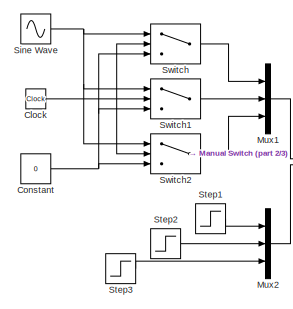
[diagram: root canvas - part 1/3, top left region]
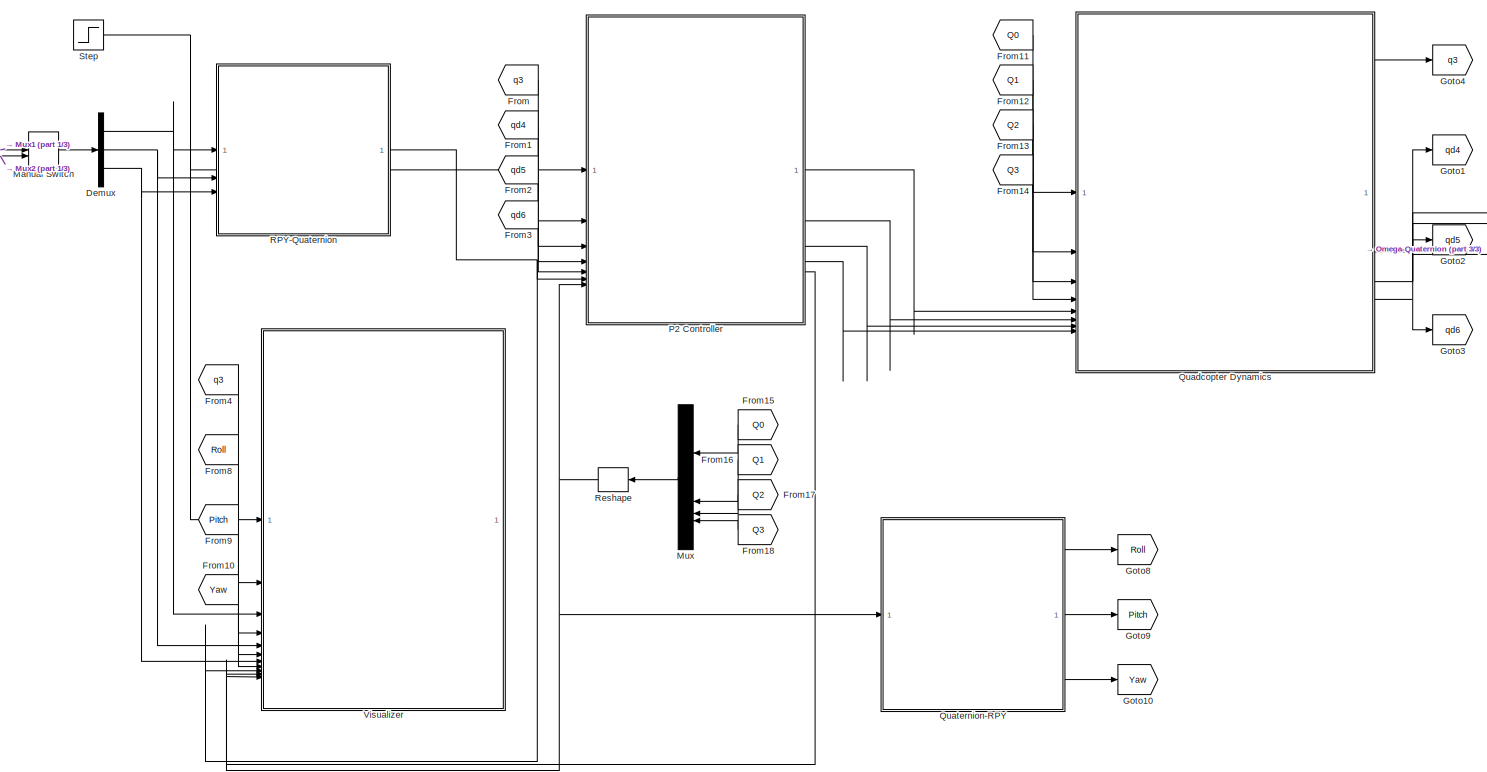
[diagram: root canvas - part 2/3, center side, full height]
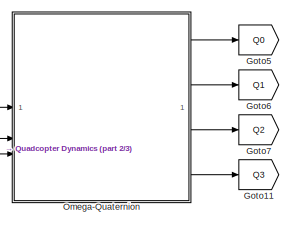
[diagram: root canvas - part 3/3, top right region]
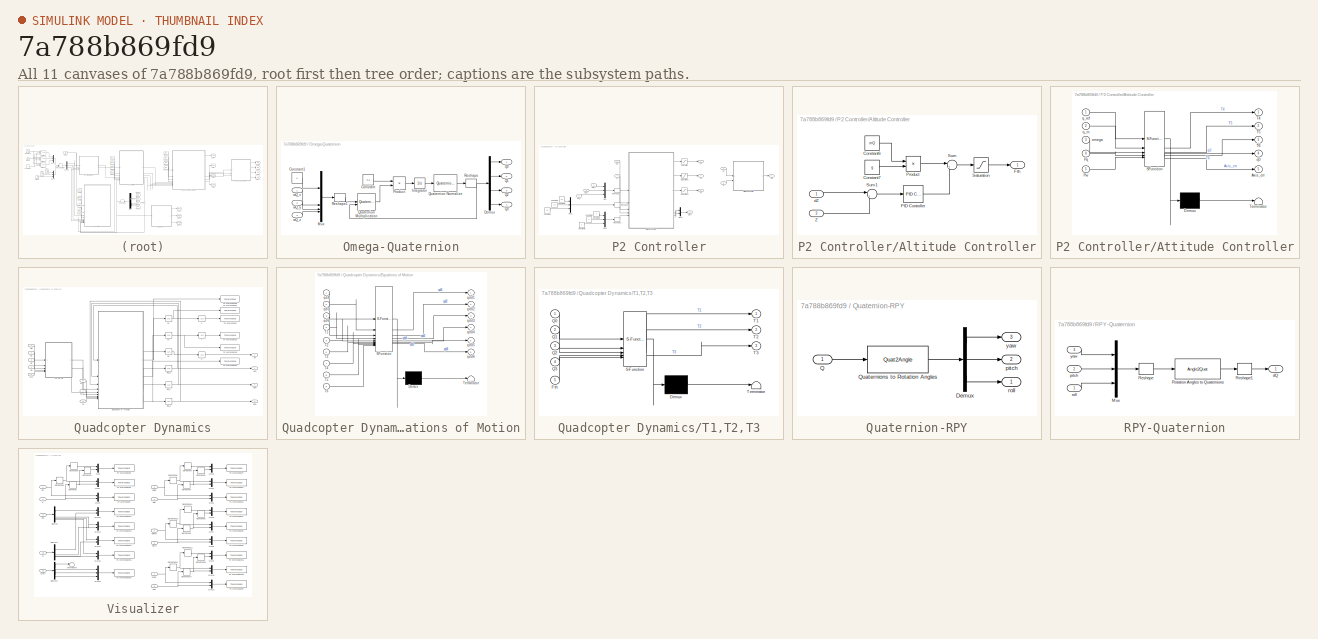
[diagram: thumbnail index - all 11 canvases of the model, root first then tree order]
MODEL slx_7a788b869fd9
KIND model
CONFIG AbsTol = auto
CONFIG EnableMultiTasking = off
CONFIG FixedStep = step_size
CONFIG MaxStep = auto
CONFIG MinStep = auto
CONFIG RelTol = 1e-5
CONFIG SampleTimeConstraint = Unconstrained
CONFIG SolverName = FixedStepAuto
CONFIG StartTime = 0
CONFIG StopTime = 30
BLOCK [Clock] Clock
BLOCK [Constant] Constant
  Value = 0
BLOCK [Demux] Demux
  Outputs = 3
BLOCK [From] From
  GotoTag = q3
BLOCK [From] From1
  GotoTag = qd4
BLOCK [From] From10
  GotoTag = Yaw
BLOCK [From] From11
  GotoTag = Q0
BLOCK [From] From12
  GotoTag = Q1
BLOCK [From] From13
  GotoTag = Q2
BLOCK [From] From14
  GotoTag = Q3
BLOCK [From] From15
  GotoTag = Q0
BLOCK [From] From16
  GotoTag = Q1
BLOCK [From] From17
  GotoTag = Q2
BLOCK [From] From18
  GotoTag = Q3
BLOCK [From] From2
  GotoTag = qd5
BLOCK [From] From3
  GotoTag = qd6
BLOCK [From] From4
  GotoTag = q3
BLOCK [From] From8
  GotoTag = Roll
BLOCK [From] From9
  GotoTag = Pitch
BLOCK [Goto] Goto1
  GotoTag = qd4
BLOCK [Goto] Goto10
  GotoTag = Yaw
BLOCK [Goto] Goto11
  GotoTag = Q3
BLOCK [Goto] Goto2
  GotoTag = qd5
BLOCK [Goto] Goto3
  GotoTag = qd6
BLOCK [Goto] Goto4
  GotoTag = q3
BLOCK [Goto] Goto5
  GotoTag = Q0
BLOCK [Goto] Goto6
  GotoTag = Q1
BLOCK [Goto] Goto7
  GotoTag = Q2
BLOCK [Goto] Goto8
  GotoTag = Roll
BLOCK [Goto] Goto9
  GotoTag = Pitch
BLOCK [ManualSwitch] Manual Switch
BLOCK [Mux] Mux
  DisplayOption = bar
BLOCK [Mux] Mux1
  DisplayOption = bar
  Inputs = 3
BLOCK [Mux] Mux2
  DisplayOption = bar
  Inputs = 3
BLOCK [SubSystem] Omega-Quaternion
BLOCK [Constant] Omega-Quaternion/Constant
  Value = -0.5
BLOCK [Constant] Omega-Quaternion/Constant1
  Value = 0
BLOCK [Demux] Omega-Quaternion/Demux
BLOCK [Integrator] Omega-Quaternion/Integrator
  InitialCondition = [1;0;0;0]
BLOCK [Mux] Omega-Quaternion/Mux
  DisplayOption = bar
BLOCK [Product] Omega-Quaternion/Product
BLOCK [Outport] Omega-Quaternion/Q0
BLOCK [Outport] Omega-Quaternion/Q1
  Port = 2
BLOCK [Outport] Omega-Quaternion/Q2
  Port = 3
BLOCK [Outport] Omega-Quaternion/Q3
  Port = 4
BLOCK [Reference] Omega-Quaternion/Quaternion Multiplication  REF=aerolibutil/Quaternion
Multiplication
  SourceBlock = aerolibutil/Quaternion\nMultiplication
  SourceType = Quaternion Multiplication
BLOCK [Reference] Omega-Quaternion/Quaternion Normalize  REF=sharedutil/Quaternion
Normalize
  LibrarySourceBlock = aerolibutil/Quaternion\nNormalize
  SourceBlock = sharedutil/Quaternion\nNormalize
  SourceType = Quaternion Normalize
BLOCK [Reshape] Omega-Quaternion/Reshape
  OutputDimensionality = Customize
  OutputDimensions = [4,1]
BLOCK [Reshape] Omega-Quaternion/Reshape1
  OutputDimensionality = Customize
  OutputDimensions = [4,1]
BLOCK [Inport] Omega-Quaternion/wQ_x
BLOCK [Inport] Omega-Quaternion/wQ_y
  Port = 2
BLOCK [Inport] Omega-Quaternion/wQ_z
  Port = 3
BLOCK [SubSystem] P2 Controller
BLOCK [SubSystem] P2 Controller/Altitude Controller
BLOCK [Constant] P2 Controller/Altitude Controller/Constant6
  Value = mQ
BLOCK [Constant] P2 Controller/Altitude Controller/Constant7
  Value = g
BLOCK [Outport] P2 Controller/Altitude Controller/Fth
BLOCK [Reference] P2 Controller/Altitude Controller/PID Controller  REF=slpidlib/PID Controller
  LibrarySourceBlock = simulink/Continuous/PID Controller
  SourceBlock = slpidlib/PID Controller
  SourceType = PID 1dof
BLOCK [Product] P2 Controller/Altitude Controller/Product
BLOCK [Saturate] P2 Controller/Altitude Controller/Saturation
  LowerLimit = 0
  UpperLimit = 23.029076935875167
BLOCK [Sum] P2 Controller/Altitude Controller/Sum
  Inputs = |++
BLOCK [Sum] P2 Controller/Altitude Controller/Sum1
  Inputs = |+-
BLOCK [Inport] P2 Controller/Altitude Controller/Z
  Port = 2
BLOCK [Inport] P2 Controller/Altitude Controller/dZ
BLOCK [SubSystem] P2 Controller/Attitude Controller
  ErrorFcn = Stateflow.Translate.translate
  PermitHierarchicalResolution = ExplicitOnly
  SFBlockType = MATLAB Function
  TreatAsAtomicUnit = on
BLOCK [Demux] P2 Controller/Attitude Controller/ Demux 
  Outputs = 1
BLOCK [S-Function] P2 Controller/Attitude Controller/ SFunction 
  EnableBusSupport = off
  FunctionName = sf_sfun
  PortCounts = [5 6]
  SFcnIsStateOwnerBlock = off
  SFunctionDeploymentMode = off
  Tag = Stateflow S-Function 1
BLOCK [Terminator] P2 Controller/Attitude Controller/ Terminator 
BLOCK [Outport] P2 Controller/Attitude Controller/Axis_err
  Port = 5
BLOCK [Inport] P2 Controller/Attitude Controller/Pq
  Port = 4
BLOCK [Inport] P2 Controller/Attitude Controller/Pw
  Port = 5
BLOCK [Outport] P2 Controller/Attitude Controller/T4
BLOCK [Outport] P2 Controller/Attitude Controller/T5
  Port = 2
BLOCK [Outport] P2 Controller/Attitude Controller/T6
  Port = 3
BLOCK [Inport] P2 Controller/Attitude Controller/omega
  Port = 3
BLOCK [Outport] P2 Controller/Attitude Controller/q0
  Port = 4
BLOCK [Inport] P2 Controller/Attitude Controller/q_m
  Port = 2
BLOCK [Inport] P2 Controller/Attitude Controller/q_ref
BLOCK [Constant] P2 Controller/Constant1
  Value = 40
BLOCK [Constant] P2 Controller/Constant2
  Value = 40
BLOCK [Constant] P2 Controller/Constant3
  Value = 4
BLOCK [Constant] P2 Controller/Constant4
  Value = 40
BLOCK [Constant] P2 Controller/Constant5
  Value = 4
BLOCK [Constant] P2 Controller/Constant6
  Value = 4
BLOCK [Outport] P2 Controller/Fth
BLOCK [Mux] P2 Controller/Mux
  DisplayOption = bar
  Inputs = 3
BLOCK [Mux] P2 Controller/Mux1
  DisplayOption = bar
  Inputs = 3
BLOCK [Mux] P2 Controller/Mux2
  DisplayOption = bar
  Inputs = 3
BLOCK [Mux] P2 Controller/Mux3
  DisplayOption = bar
  Inputs = 2
BLOCK [Inport] P2 Controller/Q
  Port = 7
BLOCK [Outport] P2 Controller/Qerr
  Port = 5
BLOCK [Reshape] P2 Controller/Reshape1
  OutputDimensionality = Customize
  OutputDimensions = [1,3]
BLOCK [Reshape] P2 Controller/Reshape2
  OutputDimensionality = Customize
  OutputDimensions = [3,1]
BLOCK [Reshape] P2 Controller/Reshape3
  OutputDimensionality = Customize
  OutputDimensions = [1,3]
BLOCK [Saturate] P2 Controller/Saturation
  LowerLimit = -1.842326154870013
  UpperLimit = 1.842326154870013
BLOCK [Saturate] P2 Controller/Saturation1
  LowerLimit = -1.842326154870013
  UpperLimit = 1.842326154870013
BLOCK [Saturate] P2 Controller/Saturation2
  LowerLimit = -0.104069495295931
  UpperLimit = 0.104069495295931
BLOCK [Outport] P2 Controller/T4
  Port = 2
BLOCK [Outport] P2 Controller/T5
  Port = 3
BLOCK [Outport] P2 Controller/T6
  Port = 4
BLOCK [Inport] P2 Controller/Z
  Port = 2
BLOCK [Inport] P2 Controller/dQ
  Port = 6
BLOCK [Inport] P2 Controller/dZ
BLOCK [Inport] P2 Controller/wQ_x
  Port = 3
BLOCK [Inport] P2 Controller/wQ_y
  Port = 4
BLOCK [Inport] P2 Controller/wQ_z
  Port = 5
BLOCK [SubSystem] Quadcopter Dynamics
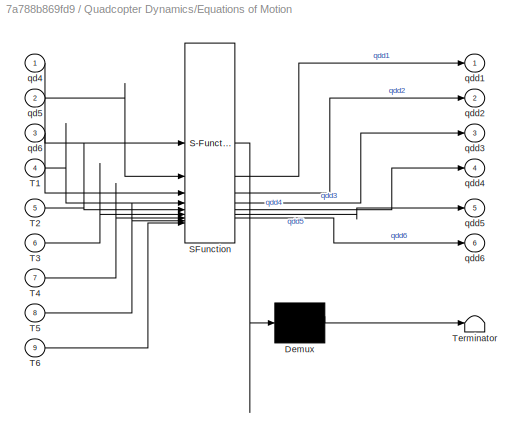
BLOCK [SubSystem] Quadcopter Dynamics/Equations of Motion
  ErrorFcn = Stateflow.Translate.translate
  PermitHierarchicalResolution = ExplicitOnly
  SFBlockType = MATLAB Function
  TreatAsAtomicUnit = on
BLOCK [Demux] Quadcopter Dynamics/Equations of Motion/ Demux 
  Outputs = 1
BLOCK [S-Function] Quadcopter Dynamics/Equations of Motion/ SFunction 
  EnableBusSupport = off
  FunctionName = sf_sfun
  PortCounts = [9 7]
  SFcnIsStateOwnerBlock = off
  SFunctionDeploymentMode = off
  Tag = Stateflow S-Function 2
BLOCK [Terminator] Quadcopter Dynamics/Equations of Motion/ Terminator 
BLOCK [Inport] Quadcopter Dynamics/Equations of Motion/T1
  Port = 4
BLOCK [Inport] Quadcopter Dynamics/Equations of Motion/T2
  Port = 5
BLOCK [Inport] Quadcopter Dynamics/Equations of Motion/T3
  Port = 6
BLOCK [Inport] Quadcopter Dynamics/Equations of Motion/T4
  Port = 7
BLOCK [Inport] Quadcopter Dynamics/Equations of Motion/T5
  Port = 8
BLOCK [Inport] Quadcopter Dynamics/Equations of Motion/T6
  Port = 9
BLOCK [Inport] Quadcopter Dynamics/Equations of Motion/qd4
BLOCK [Inport] Quadcopter Dynamics/Equations of Motion/qd5
  Port = 2
BLOCK [Inport] Quadcopter Dynamics/Equations of Motion/qd6
  Port = 3
BLOCK [Outport] Quadcopter Dynamics/Equations of Motion/qdd1
BLOCK [Outport] Quadcopter Dynamics/Equations of Motion/qdd2
  Port = 2
BLOCK [Outport] Quadcopter Dynamics/Equations of Motion/qdd3
  Port = 3
BLOCK [Outport] Quadcopter Dynamics/Equations of Motion/qdd4
  Port = 4
BLOCK [Outport] Quadcopter Dynamics/Equations of Motion/qdd5
  Port = 5
BLOCK [Outport] Quadcopter Dynamics/Equations of Motion/qdd6
  Port = 6
BLOCK [Inport] Quadcopter Dynamics/Fth
  Port = 5
BLOCK [Inport] Quadcopter Dynamics/Q0
BLOCK [Inport] Quadcopter Dynamics/Q1
  Port = 2
BLOCK [Inport] Quadcopter Dynamics/Q2
  Port = 3
BLOCK [Inport] Quadcopter Dynamics/Q3
  Port = 4
BLOCK [SubSystem] Quadcopter Dynamics/T1,T2,T3
  ErrorFcn = Stateflow.Translate.translate
  PermitHierarchicalResolution = ExplicitOnly
  SFBlockType = MATLAB Function
  TreatAsAtomicUnit = on
BLOCK [Demux] Quadcopter Dynamics/T1,T2,T3/ Demux 
  Outputs = 1
BLOCK [S-Function] Quadcopter Dynamics/T1,T2,T3/ SFunction 
  EnableBusSupport = off
  FunctionName = sf_sfun
  PortCounts = [5 4]
  SFcnIsStateOwnerBlock = off
  SFunctionDeploymentMode = off
  Tag = Stateflow S-Function 3
BLOCK [Terminator] Quadcopter Dynamics/T1,T2,T3/ Terminator 
BLOCK [Inport] Quadcopter Dynamics/T1,T2,T3/Fth
  Port = 5
BLOCK [Inport] Quadcopter Dynamics/T1,T2,T3/Q0
BLOCK [Inport] Quadcopter Dynamics/T1,T2,T3/Q1
  Port = 2
BLOCK [Inport] Quadcopter Dynamics/T1,T2,T3/Q2
  Port = 3
BLOCK [Inport] Quadcopter Dynamics/T1,T2,T3/Q3
  Port = 4
BLOCK [Outport] Quadcopter Dynamics/T1,T2,T3/T1
BLOCK [Outport] Quadcopter Dynamics/T1,T2,T3/T2
  Port = 2
BLOCK [Outport] Quadcopter Dynamics/T1,T2,T3/T3
  Port = 3
BLOCK [Inport] Quadcopter Dynamics/T4
  Port = 6
BLOCK [Inport] Quadcopter Dynamics/T5
  Port = 7
BLOCK [Inport] Quadcopter Dynamics/T6
  Port = 8
BLOCK [ToWorkspace] Quadcopter Dynamics/To Workspace
  FixptAsFi = on
  MaxDataPoints = inf
  SampleTime = -1
  SaveFormat = Timeseries
  VariableName = X
BLOCK [ToWorkspace] Quadcopter Dynamics/To Workspace1
  FixptAsFi = on
  MaxDataPoints = inf
  SampleTime = -1
  SaveFormat = Timeseries
  VariableName = Y
BLOCK [ToWorkspace] Quadcopter Dynamics/To Workspace2
  FixptAsFi = on
  MaxDataPoints = inf
  SampleTime = -1
  SaveFormat = Timeseries
  VariableName = Yd
BLOCK [ToWorkspace] Quadcopter Dynamics/To Workspace3
  FixptAsFi = on
  MaxDataPoints = inf
  SampleTime = -1
  SaveFormat = Timeseries
  VariableName = Ydd
BLOCK [ToWorkspace] Quadcopter Dynamics/To Workspace4
  FixptAsFi = on
  MaxDataPoints = inf
  SampleTime = -1
  SaveFormat = Timeseries
  VariableName = Xd
BLOCK [ToWorkspace] Quadcopter Dynamics/To Workspace5
  FixptAsFi = on
  MaxDataPoints = inf
  SampleTime = -1
  SaveFormat = Timeseries
  VariableName = Xdd
BLOCK [Integrator] Quadcopter Dynamics/X
BLOCK [Integrator] Quadcopter Dynamics/Y
BLOCK [Integrator] Quadcopter Dynamics/Z
  LimitOutput = on
  LowerSaturationLimit = 0
BLOCK [Integrator] Quadcopter Dynamics/dX
BLOCK [Integrator] Quadcopter Dynamics/dY
BLOCK [Integrator] Quadcopter Dynamics/dZ
BLOCK [Outport] Quadcopter Dynamics/q3
BLOCK [Outport] Quadcopter Dynamics/qd4
  Port = 2
BLOCK [Outport] Quadcopter Dynamics/qd5
  Port = 3
BLOCK [Outport] Quadcopter Dynamics/qd6
  Port = 4
BLOCK [Integrator] Quadcopter Dynamics/wQ_x
BLOCK [Integrator] Quadcopter Dynamics/wQ_y
BLOCK [Integrator] Quadcopter Dynamics/wQ_z
BLOCK [SubSystem] Quaternion-RPY
BLOCK [Demux] Quaternion-RPY/Demux
  Outputs = 3
BLOCK [Inport] Quaternion-RPY/Q
BLOCK [Quat2Angle] Quaternion-RPY/Quaternions to Rotation Angles
  AttributesFormatString = Rotation Order: %<rotationOrder>
BLOCK [Outport] Quaternion-RPY/pitch
  Port = 2
BLOCK [Outport] Quaternion-RPY/roll
BLOCK [Outport] Quaternion-RPY/yaw
  Port = 3
BLOCK [SubSystem] RPY-Quaternion
BLOCK [Mux] RPY-Quaternion/Mux
  DisplayOption = bar
  Inputs = 3
BLOCK [Reshape] RPY-Quaternion/Reshape
  OutputDimensionality = Customize
  OutputDimensions = [1,3]
BLOCK [Reshape] RPY-Quaternion/Reshape1
  OutputDimensionality = Customize
  OutputDimensions = [4,1]
BLOCK [Angle2Quat] RPY-Quaternion/Rotation Angles to Quaternions
  AttributesFormatString = Rotation Order: %<rotationOrder>
BLOCK [Outport] RPY-Quaternion/dQ
BLOCK [Inport] RPY-Quaternion/pitch
  Port = 2
BLOCK [Inport] RPY-Quaternion/roll
BLOCK [Inport] RPY-Quaternion/yaw
  Port = 3
BLOCK [Reshape] Reshape
  OutputDimensionality = Customize
  OutputDimensions = [4,1]
BLOCK [Sin] Sine Wave
  Amplitude = 0.5
  Frequency = 2*pi/5
  SampleTime = 0
BLOCK [Step] Step
  After = 10
  SampleTime = 0
BLOCK [Step] Step1
  After = 30*pi/180
  SampleTime = 0
  Time = 10
BLOCK [Step] Step2
  After = 30*pi/180
  SampleTime = 0
  Time = 15
BLOCK [Step] Step3
  After = 30*pi/180
  SampleTime = 0
  Time = 20
BLOCK [Switch] Switch
  Criteria = u2 > Threshold
  InputSameDT = off
  SaturateOnIntegerOverflow = off
  Threshold = 10
BLOCK [Switch] Switch1
  Criteria = u2 > Threshold
  InputSameDT = off
  SaturateOnIntegerOverflow = off
  Threshold = 15
BLOCK [Switch] Switch2
  Criteria = u2 > Threshold
  InputSameDT = off
  SaturateOnIntegerOverflow = off
  Threshold = 20
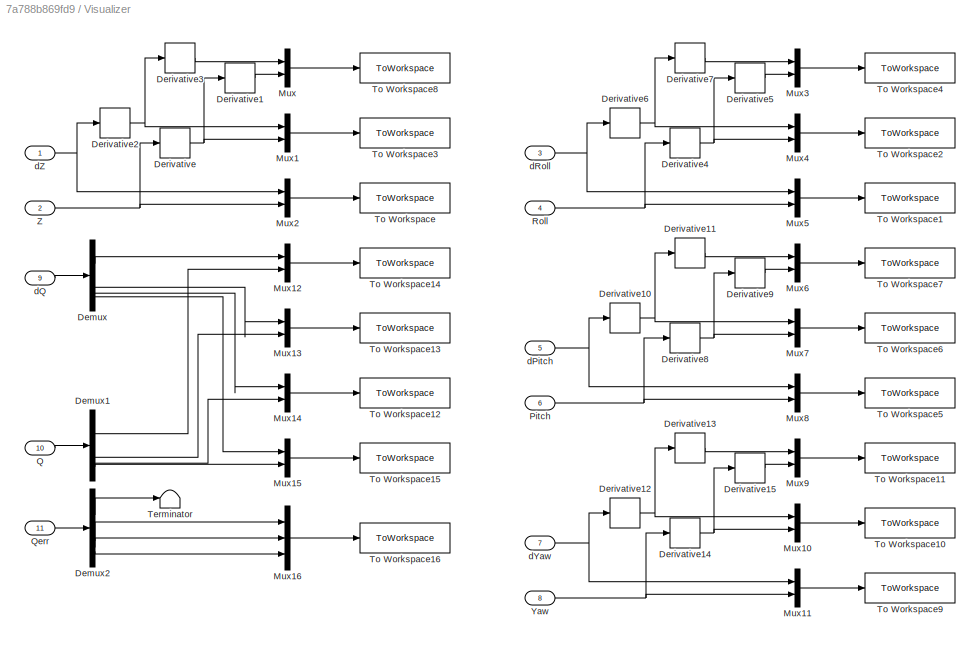
BLOCK [SubSystem] Visualizer
BLOCK [Demux] Visualizer/Demux
  NameLocation = right
BLOCK [Demux] Visualizer/Demux1
  NameLocation = right
BLOCK [Demux] Visualizer/Demux2
  NameLocation = right
BLOCK [Derivative] Visualizer/Derivative
BLOCK [Derivative] Visualizer/Derivative1
BLOCK [Derivative] Visualizer/Derivative10
BLOCK [Derivative] Visualizer/Derivative11
BLOCK [Derivative] Visualizer/Derivative12
BLOCK [Derivative] Visualizer/Derivative13
BLOCK [Derivative] Visualizer/Derivative14
BLOCK [Derivative] Visualizer/Derivative15
BLOCK [Derivative] Visualizer/Derivative2
BLOCK [Derivative] Visualizer/Derivative3
BLOCK [Derivative] Visualizer/Derivative4
BLOCK [Derivative] Visualizer/Derivative5
BLOCK [Derivative] Visualizer/Derivative6
BLOCK [Derivative] Visualizer/Derivative7
BLOCK [Derivative] Visualizer/Derivative8
BLOCK [Derivative] Visualizer/Derivative9
BLOCK [Mux] Visualizer/Mux
  DisplayOption = bar
  Inputs = 2
BLOCK [Mux] Visualizer/Mux1
  DisplayOption = bar
  Inputs = 2
BLOCK [Mux] Visualizer/Mux10
  DisplayOption = bar
  Inputs = 2
BLOCK [Mux] Visualizer/Mux11
  DisplayOption = bar
  Inputs = 2
BLOCK [Mux] Visualizer/Mux12
  DisplayOption = bar
  Inputs = 2
BLOCK [Mux] Visualizer/Mux13
  DisplayOption = bar
  Inputs = 2
BLOCK [Mux] Visualizer/Mux14
  DisplayOption = bar
  Inputs = 2
BLOCK [Mux] Visualizer/Mux15
  DisplayOption = bar
  Inputs = 2
BLOCK [Mux] Visualizer/Mux16
  DisplayOption = bar
  Inputs = 3
BLOCK [Mux] Visualizer/Mux2
  DisplayOption = bar
  Inputs = 2
BLOCK [Mux] Visualizer/Mux3
  DisplayOption = bar
  Inputs = 2
BLOCK [Mux] Visualizer/Mux4
  DisplayOption = bar
  Inputs = 2
BLOCK [Mux] Visualizer/Mux5
  DisplayOption = bar
  Inputs = 2
BLOCK [Mux] Visualizer/Mux6
  DisplayOption = bar
  Inputs = 2
BLOCK [Mux] Visualizer/Mux7
  DisplayOption = bar
  Inputs = 2
BLOCK [Mux] Visualizer/Mux8
  DisplayOption = bar
  Inputs = 2
BLOCK [Mux] Visualizer/Mux9
  DisplayOption = bar
  Inputs = 2
BLOCK [Inport] Visualizer/Pitch
  Port = 6
BLOCK [Inport] Visualizer/Q
  Port = 10
BLOCK [Inport] Visualizer/Qerr
  Port = 11
BLOCK [Inport] Visualizer/Roll
  Port = 4
BLOCK [Terminator] Visualizer/Terminator
BLOCK [ToWorkspace] Visualizer/To Workspace
  FixptAsFi = on
  MaxDataPoints = inf
  SampleTime = -1
  SaveFormat = Timeseries
  VariableName = Z
BLOCK [ToWorkspace] Visualizer/To Workspace1
  FixptAsFi = on
  MaxDataPoints = inf
  SampleTime = -1
  SaveFormat = Timeseries
  VariableName = phi
BLOCK [ToWorkspace] Visualizer/To Workspace10
  FixptAsFi = on
  MaxDataPoints = inf
  SampleTime = -1
  SaveFormat = Timeseries
  VariableName = psi_d
BLOCK [ToWorkspace] Visualizer/To Workspace11
  FixptAsFi = on
  MaxDataPoints = inf
  SampleTime = -1
  SaveFormat = Timeseries
  VariableName = psi_dd
BLOCK [ToWorkspace] Visualizer/To Workspace12
  FixptAsFi = on
  MaxDataPoints = inf
  SampleTime = -1
  SaveFormat = Timeseries
  VariableName = Q2
BLOCK [ToWorkspace] Visualizer/To Workspace13
  FixptAsFi = on
  MaxDataPoints = inf
  SampleTime = -1
  SaveFormat = Timeseries
  VariableName = Q1
BLOCK [ToWorkspace] Visualizer/To Workspace14
  FixptAsFi = on
  MaxDataPoints = inf
  SampleTime = -1
  SaveFormat = Timeseries
  VariableName = Q0
BLOCK [ToWorkspace] Visualizer/To Workspace15
  FixptAsFi = on
  MaxDataPoints = inf
  SampleTime = -1
  SaveFormat = Timeseries
  VariableName = Q3
BLOCK [ToWorkspace] Visualizer/To Workspace16
  FixptAsFi = on
  MaxDataPoints = inf
  SampleTime = -1
  SaveFormat = Timeseries
  VariableName = Qerr
BLOCK [ToWorkspace] Visualizer/To Workspace2
  FixptAsFi = on
  MaxDataPoints = inf
  SampleTime = -1
  SaveFormat = Timeseries
  VariableName = phi_d
BLOCK [ToWorkspace] Visualizer/To Workspace3
  FixptAsFi = on
  MaxDataPoints = inf
  SampleTime = -1
  SaveFormat = Timeseries
  VariableName = Zd
BLOCK [ToWorkspace] Visualizer/To Workspace4
  FixptAsFi = on
  MaxDataPoints = inf
  SampleTime = -1
  SaveFormat = Timeseries
  VariableName = phi_dd
BLOCK [ToWorkspace] Visualizer/To Workspace5
  FixptAsFi = on
  MaxDataPoints = inf
  SampleTime = -1
  SaveFormat = Timeseries
  VariableName = theta
BLOCK [ToWorkspace] Visualizer/To Workspace6
  FixptAsFi = on
  MaxDataPoints = inf
  SampleTime = -1
  SaveFormat = Timeseries
  VariableName = theta_d
BLOCK [ToWorkspace] Visualizer/To Workspace7
  FixptAsFi = on
  MaxDataPoints = inf
  SampleTime = -1
  SaveFormat = Timeseries
  VariableName = theta_dd
BLOCK [ToWorkspace] Visualizer/To Workspace8
  FixptAsFi = on
  MaxDataPoints = inf
  SampleTime = -1
  SaveFormat = Timeseries
  VariableName = Zdd
BLOCK [ToWorkspace] Visualizer/To Workspace9
  FixptAsFi = on
  MaxDataPoints = inf
  SampleTime = -1
  SaveFormat = Timeseries
  VariableName = psi
BLOCK [Inport] Visualizer/Yaw
  Port = 8
BLOCK [Inport] Visualizer/Z
  Port = 2
BLOCK [Inport] Visualizer/dPitch
  Port = 5
BLOCK [Inport] Visualizer/dQ
  Port = 9
BLOCK [Inport] Visualizer/dRoll
  Port = 3
BLOCK [Inport] Visualizer/dYaw
  Port = 7
BLOCK [Inport] Visualizer/dZ
NET Clock:1 -> Switch1:2, Switch2:2, Switch:2
NET Constant:1 -> Switch1:3, Switch2:3, Switch:3
NET Demux:1 -> RPY-Quaternion:1, Visualizer:3
NET Demux:2 -> RPY-Quaternion:2, Visualizer:5
NET Demux:3 -> RPY-Quaternion:3, Visualizer:7
LINE From10:1 -> Visualizer:8
LINE From11:1 -> Quadcopter Dynamics:1
LINE From12:1 -> Quadcopter Dynamics:2
LINE From13:1 -> Quadcopter Dynamics:3
LINE From14:1 -> Quadcopter Dynamics:4
LINE From15:1 -> Mux:1
LINE From16:1 -> Mux:2
LINE From17:1 -> Mux:3
LINE From18:1 -> Mux:4
LINE From1:1 -> P2 Controller:3
LINE From2:1 -> P2 Controller:4
LINE From3:1 -> P2 Controller:5
LINE From4:1 -> Visualizer:2
LINE From8:1 -> Visualizer:4
LINE From9:1 -> Visualizer:6
LINE From:1 -> P2 Controller:2
LINE Manual Switch:1 -> Demux:1
LINE Mux1:1 -> Manual Switch:1
LINE Mux2:1 -> Manual Switch:2
LINE Mux:1 -> Reshape:1
LINE Omega-Quaternion/Constant1:1 -> Omega-Quaternion/Mux:1
LINE Omega-Quaternion/Constant:1 -> Omega-Quaternion/Product:1
LINE Omega-Quaternion/Demux:1 -> Omega-Quaternion/Q0:1
LINE Omega-Quaternion/Demux:2 -> Omega-Quaternion/Q1:1
LINE Omega-Quaternion/Demux:3 -> Omega-Quaternion/Q2:1
LINE Omega-Quaternion/Demux:4 -> Omega-Quaternion/Q3:1
LINE Omega-Quaternion/Integrator:1 -> Omega-Quaternion/Quaternion Normalize:1
LINE Omega-Quaternion/Mux:1 -> Omega-Quaternion/Reshape1:1
LINE Omega-Quaternion/Product:1 -> Omega-Quaternion/Integrator:1
LINE Omega-Quaternion/Quaternion Multiplication:1 -> Omega-Quaternion/Product:2
LINE Omega-Quaternion/Quaternion Normalize:1 -> Omega-Quaternion/Reshape:1
LINE Omega-Quaternion/Reshape1:1 -> Omega-Quaternion/Quaternion Multiplication:1
NET Omega-Quaternion/Reshape:1 -> Omega-Quaternion/Demux:1, Omega-Quaternion/Quaternion Multiplication:2
LINE Omega-Quaternion/wQ_x:1 -> Omega-Quaternion/Mux:2
LINE Omega-Quaternion/wQ_y:1 -> Omega-Quaternion/Mux:3
LINE Omega-Quaternion/wQ_z:1 -> Omega-Quaternion/Mux:4
LINE Omega-Quaternion:1 -> Goto5:1
LINE Omega-Quaternion:2 -> Goto6:1
LINE Omega-Quaternion:3 -> Goto7:1
LINE Omega-Quaternion:4 -> Goto11:1
LINE P2 Controller/Altitude Controller/Constant6:1 -> P2 Controller/Altitude Controller/Product:1
LINE P2 Controller/Altitude Controller/Constant7:1 -> P2 Controller/Altitude Controller/Product:2
LINE P2 Controller/Altitude Controller/PID Controller:1 -> P2 Controller/Altitude Controller/Sum:2
LINE P2 Controller/Altitude Controller/Product:1 -> P2 Controller/Altitude Controller/Sum:1
LINE P2 Controller/Altitude Controller/Saturation:1 -> P2 Controller/Altitude Controller/Fth:1
LINE P2 Controller/Altitude Controller/Sum1:1 -> P2 Controller/Altitude Controller/PID Controller:1
LINE P2 Controller/Altitude Controller/Sum:1 -> P2 Controller/Altitude Controller/Saturation:1
LINE P2 Controller/Altitude Controller/Z:1 -> P2 Controller/Altitude Controller/Sum1:2
LINE P2 Controller/Altitude Controller/dZ:1 -> P2 Controller/Altitude Controller/Sum1:1
LINE P2 Controller/Altitude Controller:1 -> P2 Controller/Fth:1
LINE P2 Controller/Attitude Controller:1 -> P2 Controller/Saturation:1
LINE P2 Controller/Attitude Controller:2 -> P2 Controller/Saturation1:1
LINE P2 Controller/Attitude Controller:3 -> P2 Controller/Saturation2:1
LINE P2 Controller/Attitude Controller:4 -> P2 Controller/Mux3:1
LINE P2 Controller/Attitude Controller:5 -> P2 Controller/Mux3:2
LINE P2 Controller/Constant1:1 -> P2 Controller/Mux1:3
LINE P2 Controller/Constant2:1 -> P2 Controller/Mux1:1
LINE P2 Controller/Constant3:1 -> P2 Controller/Mux2:3
LINE P2 Controller/Constant4:1 -> P2 Controller/Mux1:2
LINE P2 Controller/Constant5:1 -> P2 Controller/Mux2:1
LINE P2 Controller/Constant6:1 -> P2 Controller/Mux2:2
LINE P2 Controller/Mux1:1 -> P2 Controller/Reshape1:1
LINE P2 Controller/Mux2:1 -> P2 Controller/Reshape3:1
LINE P2 Controller/Mux3:1 -> P2 Controller/Qerr:1
LINE P2 Controller/Mux:1 -> P2 Controller/Reshape2:1
LINE P2 Controller/Q:1 -> P2 Controller/Attitude Controller:2
LINE P2 Controller/Reshape1:1 -> P2 Controller/Attitude Controller:4
LINE P2 Controller/Reshape2:1 -> P2 Controller/Attitude Controller:3
LINE P2 Controller/Reshape3:1 -> P2 Controller/Attitude Controller:5
LINE P2 Controller/Saturation1:1 -> P2 Controller/T5:1
LINE P2 Controller/Saturation2:1 -> P2 Controller/T6:1
LINE P2 Controller/Saturation:1 -> P2 Controller/T4:1
LINE P2 Controller/Z:1 -> P2 Controller/Altitude Controller:2
LINE P2 Controller/dQ:1 -> P2 Controller/Attitude Controller:1
LINE P2 Controller/dZ:1 -> P2 Controller/Altitude Controller:1
LINE P2 Controller/wQ_x:1 -> P2 Controller/Mux:1
LINE P2 Controller/wQ_y:1 -> P2 Controller/Mux:2
LINE P2 Controller/wQ_z:1 -> P2 Controller/Mux:3
LINE P2 Controller:1 -> Quadcopter Dynamics:5
LINE P2 Controller:2 -> Quadcopter Dynamics:6
LINE P2 Controller:3 -> Quadcopter Dynamics:7
LINE P2 Controller:4 -> Quadcopter Dynamics:8
LINE P2 Controller:5 -> Visualizer:11
NET Quadcopter Dynamics/Equations of Motion:1 -> Quadcopter Dynamics/To Workspace5:1, Quadcopter Dynamics/dX:1
NET Quadcopter Dynamics/Equations of Motion:2 -> Quadcopter Dynamics/To Workspace3:1, Quadcopter Dynamics/dY:1
LINE Quadcopter Dynamics/Equations of Motion:3 -> Quadcopter Dynamics/dZ:1
LINE Quadcopter Dynamics/Equations of Motion:4 -> Quadcopter Dynamics/wQ_x:1
LINE Quadcopter Dynamics/Equations of Motion:5 -> Quadcopter Dynamics/wQ_y:1
LINE Quadcopter Dynamics/Equations of Motion:6 -> Quadcopter Dynamics/wQ_z:1
LINE Quadcopter Dynamics/Fth:1 -> Quadcopter Dynamics/T1,T2,T3:5
LINE Quadcopter Dynamics/Q0:1 -> Quadcopter Dynamics/T1,T2,T3:1
LINE Quadcopter Dynamics/Q1:1 -> Quadcopter Dynamics/T1,T2,T3:2
LINE Quadcopter Dynamics/Q2:1 -> Quadcopter Dynamics/T1,T2,T3:3
LINE Quadcopter Dynamics/Q3:1 -> Quadcopter Dynamics/T1,T2,T3:4
LINE Quadcopter Dynamics/T1,T2,T3:1 -> Quadcopter Dynamics/Equations of Motion:4
LINE Quadcopter Dynamics/T1,T2,T3:2 -> Quadcopter Dynamics/Equations of Motion:5
LINE Quadcopter Dynamics/T1,T2,T3:3 -> Quadcopter Dynamics/Equations of Motion:6
LINE Quadcopter Dynamics/T4:1 -> Quadcopter Dynamics/Equations of Motion:7
LINE Quadcopter Dynamics/T5:1 -> Quadcopter Dynamics/Equations of Motion:8
LINE Quadcopter Dynamics/T6:1 -> Quadcopter Dynamics/Equations of Motion:9
LINE Quadcopter Dynamics/X:1 -> Quadcopter Dynamics/To Workspace:1
LINE Quadcopter Dynamics/Y:1 -> Quadcopter Dynamics/To Workspace1:1
LINE Quadcopter Dynamics/Z:1 -> Quadcopter Dynamics/q3:1
NET Quadcopter Dynamics/dX:1 -> Quadcopter Dynamics/To Workspace4:1, Quadcopter Dynamics/X:1
NET Quadcopter Dynamics/dY:1 -> Quadcopter Dynamics/To Workspace2:1, Quadcopter Dynamics/Y:1
LINE Quadcopter Dynamics/dZ:1 -> Quadcopter Dynamics/Z:1
NET Quadcopter Dynamics/wQ_x:1 -> Quadcopter Dynamics/Equations of Motion:1, Quadcopter Dynamics/qd4:1
NET Quadcopter Dynamics/wQ_y:1 -> Quadcopter Dynamics/Equations of Motion:2, Quadcopter Dynamics/qd5:1
NET Quadcopter Dynamics/wQ_z:1 -> Quadcopter Dynamics/Equations of Motion:3, Quadcopter Dynamics/qd6:1
LINE Quadcopter Dynamics:1 -> Goto4:1
NET Quadcopter Dynamics:2 -> Goto1:1, Omega-Quaternion:1
NET Quadcopter Dynamics:3 -> Goto2:1, Omega-Quaternion:2
NET Quadcopter Dynamics:4 -> Goto3:1, Omega-Quaternion:3
LINE Quaternion-RPY/Demux:1 -> Quaternion-RPY/yaw:1
LINE Quaternion-RPY/Demux:2 -> Quaternion-RPY/pitch:1
LINE Quaternion-RPY/Demux:3 -> Quaternion-RPY/roll:1
LINE Quaternion-RPY/Q:1 -> Quaternion-RPY/Quaternions to Rotation Angles:1
LINE Quaternion-RPY/Quaternions to Rotation Angles:1 -> Quaternion-RPY/Demux:1
LINE Quaternion-RPY:1 -> Goto8:1
LINE Quaternion-RPY:2 -> Goto9:1
LINE Quaternion-RPY:3 -> Goto10:1
LINE RPY-Quaternion/Mux:1 -> RPY-Quaternion/Reshape:1
LINE RPY-Quaternion/Reshape1:1 -> RPY-Quaternion/dQ:1
LINE RPY-Quaternion/Reshape:1 -> RPY-Quaternion/Rotation Angles to Quaternions:1
LINE RPY-Quaternion/Rotation Angles to Quaternions:1 -> RPY-Quaternion/Reshape1:1
LINE RPY-Quaternion/pitch:1 -> RPY-Quaternion/Mux:2
LINE RPY-Quaternion/roll:1 -> RPY-Quaternion/Mux:3
LINE RPY-Quaternion/yaw:1 -> RPY-Quaternion/Mux:1
NET RPY-Quaternion:1 -> P2 Controller:6, Visualizer:9
NET Reshape:1 -> P2 Controller:7, Quaternion-RPY:1, Visualizer:10
NET Sine Wave:1 -> Switch1:1, Switch2:1, Switch:1
LINE Step1:1 -> Mux2:1
LINE Step2:1 -> Mux2:2
LINE Step3:1 -> Mux2:3
NET Step:1 -> P2 Controller:1, Visualizer:1
LINE Switch1:1 -> Mux1:2
LINE Switch2:1 -> Mux1:3
LINE Switch:1 -> Mux1:1
LINE Visualizer/Demux1:1 -> Visualizer/Mux12:2
LINE Visualizer/Demux1:2 -> Visualizer/Mux13:2
LINE Visualizer/Demux1:3 -> Visualizer/Mux14:2
LINE Visualizer/Demux1:4 -> Visualizer/Mux15:2
LINE Visualizer/Demux2:1 -> Visualizer/Terminator:1
LINE Visualizer/Demux2:2 -> Visualizer/Mux16:1
LINE Visualizer/Demux2:3 -> Visualizer/Mux16:2
LINE Visualizer/Demux2:4 -> Visualizer/Mux16:3
LINE Visualizer/Demux:1 -> Visualizer/Mux12:1
LINE Visualizer/Demux:2 -> Visualizer/Mux13:1
LINE Visualizer/Demux:3 -> Visualizer/Mux14:1
LINE Visualizer/Demux:4 -> Visualizer/Mux15:1
NET Visualizer/Derivative10:1 -> Visualizer/Derivative11:1, Visualizer/Mux7:1
LINE Visualizer/Derivative11:1 -> Visualizer/Mux6:1
NET Visualizer/Derivative12:1 -> Visualizer/Derivative13:1, Visualizer/Mux10:1
LINE Visualizer/Derivative13:1 -> Visualizer/Mux9:1
NET Visualizer/Derivative14:1 -> Visualizer/Derivative15:1, Visualizer/Mux10:2
LINE Visualizer/Derivative15:1 -> Visualizer/Mux9:2
LINE Visualizer/Derivative1:1 -> Visualizer/Mux:2
NET Visualizer/Derivative2:1 -> Visualizer/Derivative3:1, Visualizer/Mux1:1
LINE Visualizer/Derivative3:1 -> Visualizer/Mux:1
NET Visualizer/Derivative4:1 -> Visualizer/Derivative5:1, Visualizer/Mux4:2
LINE Visualizer/Derivative5:1 -> Visualizer/Mux3:2
NET Visualizer/Derivative6:1 -> Visualizer/Derivative7:1, Visualizer/Mux4:1
LINE Visualizer/Derivative7:1 -> Visualizer/Mux3:1
NET Visualizer/Derivative8:1 -> Visualizer/Derivative9:1, Visualizer/Mux7:2
LINE Visualizer/Derivative9:1 -> Visualizer/Mux6:2
NET Visualizer/Derivative:1 -> Visualizer/Derivative1:1, Visualizer/Mux1:2
LINE Visualizer/Mux10:1 -> Visualizer/To Workspace10:1
LINE Visualizer/Mux11:1 -> Visualizer/To Workspace9:1
LINE Visualizer/Mux12:1 -> Visualizer/To Workspace14:1
LINE Visualizer/Mux13:1 -> Visualizer/To Workspace13:1
LINE Visualizer/Mux14:1 -> Visualizer/To Workspace12:1
LINE Visualizer/Mux15:1 -> Visualizer/To Workspace15:1
LINE Visualizer/Mux16:1 -> Visualizer/To Workspace16:1
LINE Visualizer/Mux1:1 -> Visualizer/To Workspace3:1
LINE Visualizer/Mux2:1 -> Visualizer/To Workspace:1
LINE Visualizer/Mux3:1 -> Visualizer/To Workspace4:1
LINE Visualizer/Mux4:1 -> Visualizer/To Workspace2:1
LINE Visualizer/Mux5:1 -> Visualizer/To Workspace1:1
LINE Visualizer/Mux6:1 -> Visualizer/To Workspace7:1
LINE Visualizer/Mux7:1 -> Visualizer/To Workspace6:1
LINE Visualizer/Mux8:1 -> Visualizer/To Workspace5:1
LINE Visualizer/Mux9:1 -> Visualizer/To Workspace11:1
LINE Visualizer/Mux:1 -> Visualizer/To Workspace8:1
NET Visualizer/Pitch:1 -> Visualizer/Derivative8:1, Visualizer/Mux8:2
LINE Visualizer/Q:1 -> Visualizer/Demux1:1
LINE Visualizer/Qerr:1 -> Visualizer/Demux2:1
NET Visualizer/Roll:1 -> Visualizer/Derivative4:1, Visualizer/Mux5:2
NET Visualizer/Yaw:1 -> Visualizer/Derivative14:1, Visualizer/Mux11:2
NET Visualizer/Z:1 -> Visualizer/Derivative:1, Visualizer/Mux2:2
NET Visualizer/dPitch:1 -> Visualizer/Derivative10:1, Visualizer/Mux8:1
LINE Visualizer/dQ:1 -> Visualizer/Demux:1
NET Visualizer/dRoll:1 -> Visualizer/Derivative6:1, Visualizer/Mux5:1
NET Visualizer/dYaw:1 -> Visualizer/Derivative12:1, Visualizer/Mux11:1
NET Visualizer/dZ:1 -> Visualizer/Derivative2:1, Visualizer/Mux2:1
note: NET lines group one-source signal fan-out (src -> all destinations, sorted); 1:1 wires keep LINE
CHART P2 Controller/Attitude Controller states=1 transitions=1
  STATE_LABEL 'eML_blk_kernel()'
  STATE_LABEL 'SCRIPT:\nfunction [T4,T5,T6,q0,Axis_err] = quaternion_attitude_controller(q_ref, q_m, omega, Pq, Pw)\n% QUATERNION_ATTITUDE_CONTROLLER\n% Implements the full quaternion-based P² attitude controller\n% q_ref: desired quaternion [q0; q1; q2; q3]\n% q_m: measured quaternion [q0; q1; q2; q3]\n% omega: measured angular velocity [wx; wy; wz]\n% Pq: proportional gain for quaternion error\n% Pomega: proportional ...<+690ch>'
CHART Quadcopter Dynamics/Equations of Motion states=1 transitions=1
  STATE_LABEL 'eML_blk_kernel()'
  STATE_LABEL 'SCRIPT:\nfunction [qdd1,qdd2,qdd3,qdd4,qdd5,qdd6] = quadcopter_dynamics(qd4,qd5,qd6,T1,T2,T3,T4,T5,T6)\n\n%Output\nqdd1 = 0.6667*T1;\nqdd2 = 0.6667*T2;\nqdd3 = 0.6667*T3 - 9.81;\n\nwQ = [qd4;qd5;qd6];\nIQ = [0.012273,0,0;\n      0,0.012526,0;\n      0,0,0.020953];\n\nT = [T4;T5;T6];\n\nwQd = IQ\\(T - cross(wQ, IQ*wQ));\n\nqdd4 = wQd(1);\nqdd5 = wQd(2);\nqdd6 = wQd(3);\n\n% qdd4 = (T4 + (0.012526-0.020953)*qd5*qd6)/0.01...<+118ch>'
CHART Quadcopter Dynamics/T1,T2,T3 states=1 transitions=1
  STATE_LABEL 'eML_blk_kernel()'
  STATE_LABEL 'SCRIPT:\nfunction [T1,T2,T3] = calc_f(Q0,Q1,Q2,Q3,Fth)\n\n% Rotate thrust vector\nq = [Q0,Q1,Q2,Q3];\nq_conj = [Q0,-Q1,-Q2,-Q3];\nF = [0,0,0,Fth];\nT = quatmultiply(q_conj,quatmultiply(q,F));\n\n% q0 = Q0;\n% qx = Q1;\n% qy = Q2;\n% qz = Q3;\n% \n% R = [1 - 2*qy^2 - 2*qz^2,     2*qx*qy - 2*qz*q0,     2*qx*qz + 2*qy*q0;\n%      2*qx*qy + 2*qz*q0, 1 - 2*qx^2 - 2*qz^2,     2*qy*qz - 2*qx*q0;\n%      2*qx*qz - 2*qy*q...<+119ch>'
CHART  states=0 transitions=0
CHART  states=0 transitions=0
CHART  states=0 transitions=0
